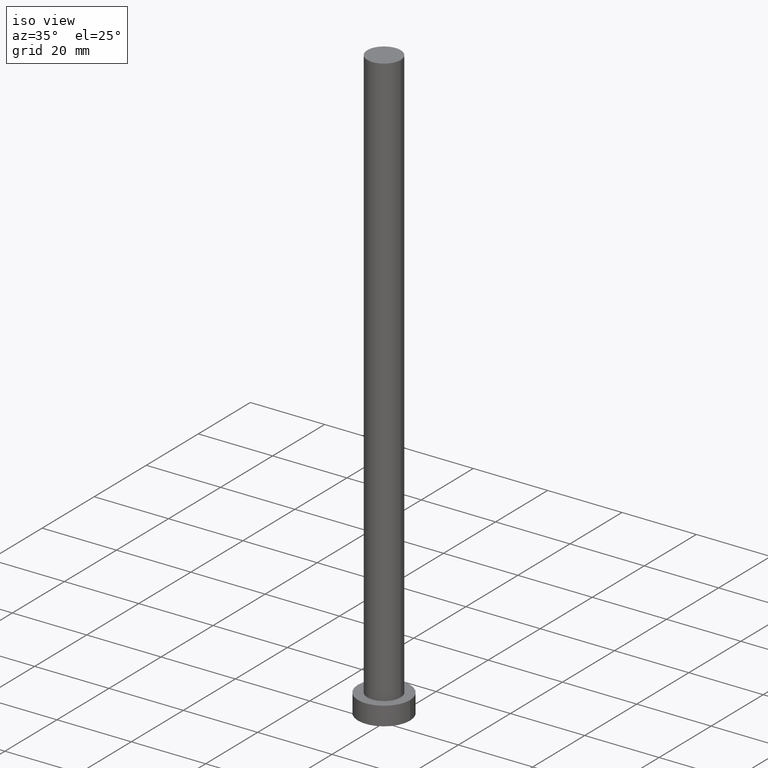
[diagram: clean part render]
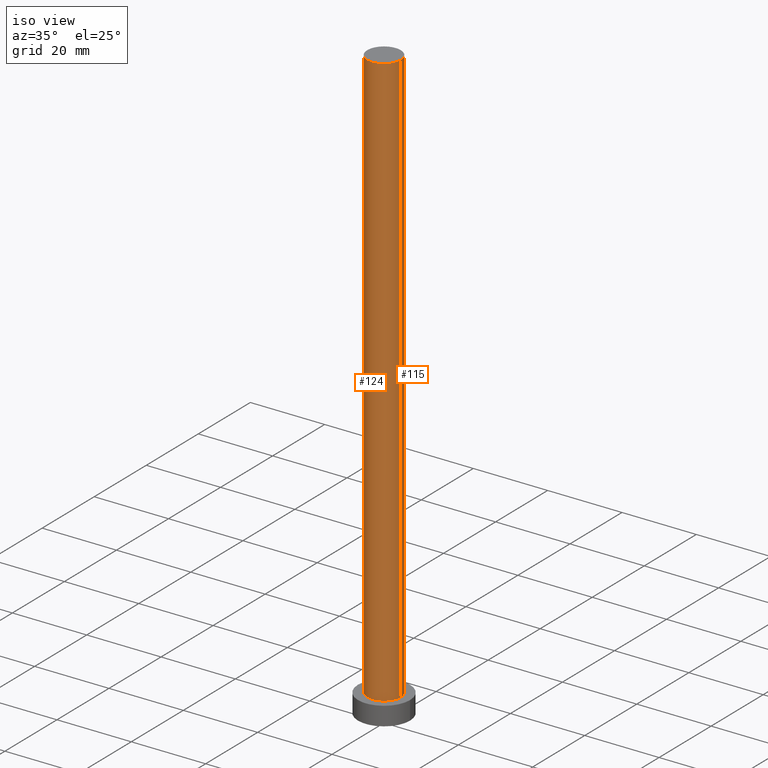
[diagram: same view with one multi-face feature highlighted, each face labeled with its STEP entity id]
A machine part, iso view. The highlighted faces form ONE feature: a constant-radius fillet chain: 2 tangent blend faces with common blend radius 4.5 mm. The faces share edges in the B-rep.
Their STEP definitions:
[1] entity #124 (Cylinder):
#6 = VERTEX_POINT ( 'NONE', #40 ) ;
#12 = EDGE_CURVE ( 'NONE', #6, #71, #84, .T. ) ;
#17 = EDGE_CURVE ( 'NONE', #237, #6, #222, .T. ) ;
#19 = CARTESIAN_POINT ( 'NONE',  ( 0.000000000000000000, 0.000000000000000000, 160.0000000000000000 ) ) ;
#38 = EDGE_CURVE ( 'NONE', #155, #71, #69, .T. ) ;
#40 = CARTESIAN_POINT ( 'NONE',  ( 4.500000000000000000, 5.510910596163088569E-16, 160.0000000000000000 ) ) ;
#43 = DIRECTION ( 'NONE',  ( 1.000000000000000000, 0.000000000000000000, 0.000000000000000000 ) ) ;
#45 = DIRECTION ( 'NONE',  ( -0.000000000000000000, -0.000000000000000000, -1.000000000000000000 ) ) ;
#67 = DIRECTION ( 'NONE',  ( 1.000000000000000000, 0.000000000000000000, 0.000000000000000000 ) ) ;
#69 = CIRCLE ( 'NONE', #232, 4.500000000000000000 ) ;
#71 = VERTEX_POINT ( 'NONE', #225 ) ;
#74 = ORIENTED_EDGE ( 'NONE', *, *, #38, .T. ) ;
#84 = LINE ( 'NONE', #118, #183 ) ;
#86 = CYLINDRICAL_SURFACE ( 'NONE', #249, 4.500000000000000000 ) ;
#87 = DIRECTION ( 'NONE',  ( -0.000000000000000000, -0.000000000000000000, -1.000000000000000000 ) ) ;
#103 = DIRECTION ( 'NONE',  ( -1.000000000000000000, 0.000000000000000000, 0.000000000000000000 ) ) ;
#118 = CARTESIAN_POINT ( 'NONE',  ( 4.500000000000000000, 5.510910596163088569E-16, 160.0000000000000000 ) ) ;
#124 = ADVANCED_FACE ( 'NONE', ( #148 ), #86, .T. ) ;
#134 = CARTESIAN_POINT ( 'NONE',  ( 0.000000000000000000, 0.000000000000000000, 5.000000000000000000 ) ) ;
#138 = EDGE_LOOP ( 'NONE', ( #221, #180, #241, #74 ) ) ;
#146 = DIRECTION ( 'NONE',  ( 0.000000000000000000, 0.000000000000000000, 1.000000000000000000 ) ) ;
#148 = FACE_OUTER_BOUND ( 'NONE', #138, .T. ) ;
#149 = CARTESIAN_POINT ( 'NONE',  ( 0.000000000000000000, 0.000000000000000000, 160.0000000000000000 ) ) ;
#155 = VERTEX_POINT ( 'NONE', #216 ) ;
#160 = VECTOR ( 'NONE', #214, 1000.000000000000000 ) ;
#169 = LINE ( 'NONE', #172, #160 ) ;
#172 = CARTESIAN_POINT ( 'NONE',  ( -4.500000000000000000, 0.000000000000000000, 160.0000000000000000 ) ) ;
#180 = ORIENTED_EDGE ( 'NONE', *, *, #17, .F. ) ;
#183 = VECTOR ( 'NONE', #87, 1000.000000000000000 ) ;
#190 = CARTESIAN_POINT ( 'NONE',  ( -4.500000000000000000, 0.000000000000000000, 160.0000000000000000 ) ) ;
#214 = DIRECTION ( 'NONE',  ( -0.000000000000000000, -0.000000000000000000, -1.000000000000000000 ) ) ;
#216 = CARTESIAN_POINT ( 'NONE',  ( -4.500000000000000000, 0.000000000000000000, 5.000000000000000000 ) ) ;
#217 = DIRECTION ( 'NONE',  ( 0.000000000000000000, 0.000000000000000000, 1.000000000000000000 ) ) ;
#221 = ORIENTED_EDGE ( 'NONE', *, *, #12, .F. ) ;
#222 = CIRCLE ( 'NONE', #227, 4.500000000000000000 ) ;
#225 = CARTESIAN_POINT ( 'NONE',  ( 4.500000000000000000, 5.510910596163088569E-16, 5.000000000000000000 ) ) ;
#227 = AXIS2_PLACEMENT_3D ( 'NONE', #149, #146, #67 ) ;
#232 = AXIS2_PLACEMENT_3D ( 'NONE', #134, #217, #43 ) ;
#237 = VERTEX_POINT ( 'NONE', #190 ) ;
#241 = ORIENTED_EDGE ( 'NONE', *, *, #247, .T. ) ;
#247 = EDGE_CURVE ( 'NONE', #237, #155, #169, .T. ) ;
#249 = AXIS2_PLACEMENT_3D ( 'NONE', #19, #45, #103 ) ;
[2] entity #115 (Cylinder):
#6 = VERTEX_POINT ( 'NONE', #40 ) ;
#12 = EDGE_CURVE ( 'NONE', #6, #71, #84, .T. ) ;
#15 = CYLINDRICAL_SURFACE ( 'NONE', #240, 4.500000000000000000 ) ;
#23 = DIRECTION ( 'NONE',  ( -0.000000000000000000, -0.000000000000000000, -1.000000000000000000 ) ) ;
#24 = DIRECTION ( 'NONE',  ( 1.000000000000000000, 0.000000000000000000, 0.000000000000000000 ) ) ;
#40 = CARTESIAN_POINT ( 'NONE',  ( 4.500000000000000000, 5.510910596163088569E-16, 160.0000000000000000 ) ) ;
#42 = CARTESIAN_POINT ( 'NONE',  ( 0.000000000000000000, 0.000000000000000000, 5.000000000000000000 ) ) ;
#49 = ORIENTED_EDGE ( 'NONE', *, *, #135, .F. ) ;
#63 = CIRCLE ( 'NONE', #128, 4.500000000000000000 ) ;
#71 = VERTEX_POINT ( 'NONE', #225 ) ;
#76 = AXIS2_PLACEMENT_3D ( 'NONE', #42, #236, #255 ) ;
#84 = LINE ( 'NONE', #118, #183 ) ;
#87 = DIRECTION ( 'NONE',  ( -0.000000000000000000, -0.000000000000000000, -1.000000000000000000 ) ) ;
#88 = ORIENTED_EDGE ( 'NONE', *, *, #12, .T. ) ;
#106 = DIRECTION ( 'NONE',  ( -1.000000000000000000, 0.000000000000000000, 0.000000000000000000 ) ) ;
#112 = CIRCLE ( 'NONE', #76, 4.500000000000000000 ) ;
#115 = ADVANCED_FACE ( 'NONE', ( #189 ), #15, .T. ) ;
#118 = CARTESIAN_POINT ( 'NONE',  ( 4.500000000000000000, 5.510910596163088569E-16, 160.0000000000000000 ) ) ;
#121 = EDGE_CURVE ( 'NONE', #71, #155, #112, .T. ) ;
#128 = AXIS2_PLACEMENT_3D ( 'NONE', #197, #176, #24 ) ;
#135 = EDGE_CURVE ( 'NONE', #6, #237, #63, .T. ) ;
#155 = VERTEX_POINT ( 'NONE', #216 ) ;
#157 = EDGE_LOOP ( 'NONE', ( #49, #88, #202, #196 ) ) ;
#160 = VECTOR ( 'NONE', #214, 1000.000000000000000 ) ;
#168 = CARTESIAN_POINT ( 'NONE',  ( 0.000000000000000000, 0.000000000000000000, 160.0000000000000000 ) ) ;
#169 = LINE ( 'NONE', #172, #160 ) ;
#172 = CARTESIAN_POINT ( 'NONE',  ( -4.500000000000000000, 0.000000000000000000, 160.0000000000000000 ) ) ;
#176 = DIRECTION ( 'NONE',  ( 0.000000000000000000, 0.000000000000000000, 1.000000000000000000 ) ) ;
#183 = VECTOR ( 'NONE', #87, 1000.000000000000000 ) ;
#189 = FACE_OUTER_BOUND ( 'NONE', #157, .T. ) ;
#190 = CARTESIAN_POINT ( 'NONE',  ( -4.500000000000000000, 0.000000000000000000, 160.0000000000000000 ) ) ;
#196 = ORIENTED_EDGE ( 'NONE', *, *, #247, .F. ) ;
#197 = CARTESIAN_POINT ( 'NONE',  ( 0.000000000000000000, 0.000000000000000000, 160.0000000000000000 ) ) ;
#202 = ORIENTED_EDGE ( 'NONE', *, *, #121, .T. ) ;
#214 = DIRECTION ( 'NONE',  ( -0.000000000000000000, -0.000000000000000000, -1.000000000000000000 ) ) ;
#216 = CARTESIAN_POINT ( 'NONE',  ( -4.500000000000000000, 0.000000000000000000, 5.000000000000000000 ) ) ;
#225 = CARTESIAN_POINT ( 'NONE',  ( 4.500000000000000000, 5.510910596163088569E-16, 5.000000000000000000 ) ) ;
#236 = DIRECTION ( 'NONE',  ( 0.000000000000000000, 0.000000000000000000, 1.000000000000000000 ) ) ;
#237 = VERTEX_POINT ( 'NONE', #190 ) ;
#240 = AXIS2_PLACEMENT_3D ( 'NONE', #168, #23, #106 ) ;
#247 = EDGE_CURVE ( 'NONE', #237, #155, #169, .T. ) ;
#255 = DIRECTION ( 'NONE',  ( 1.000000000000000000, 0.000000000000000000, 0.000000000000000000 ) ) ;